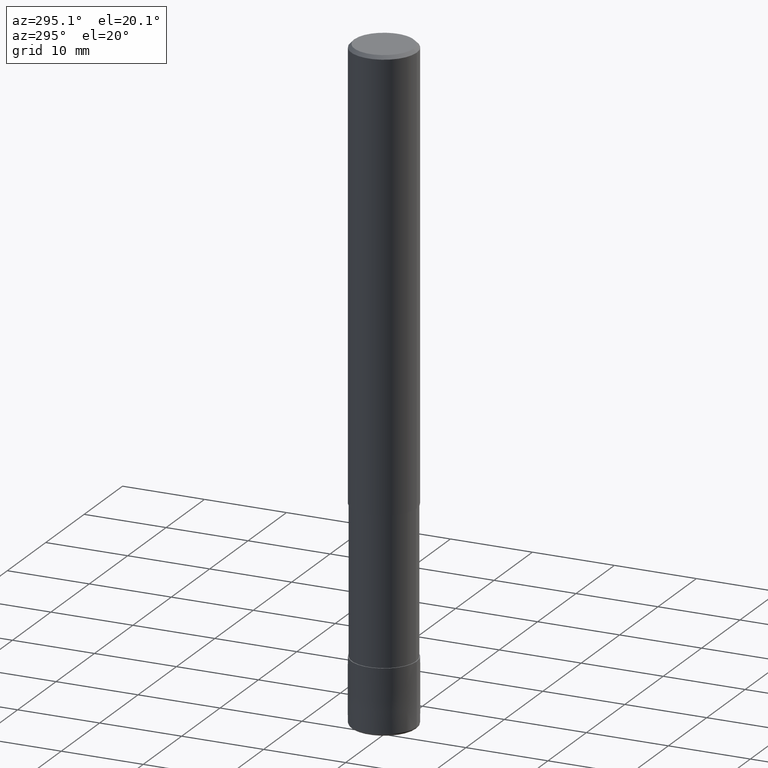
[diagram: clean part render]
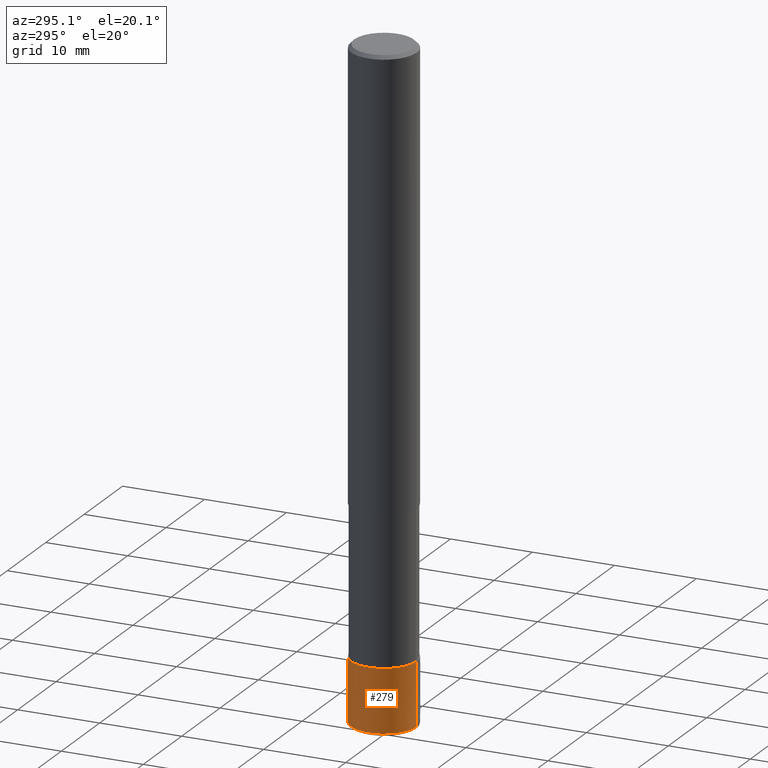
[diagram: same view with one face highlighted and labeled with its STEP entity id]
A machine part, auxiliary view. The second image highlights one B-rep face of the part: STEP entity #279.
In plain terms, the highlighted conical surface has half-angle 0.001 deg.
Its self-contained STEP definition (entity closure, byte-faithful):
#121=EDGE_CURVE('',#127,#221,#308,.T.);
#127=VERTEX_POINT('',#315);
#193=VERTEX_POINT('',#392);
#199=EDGE_CURVE('',#257,#221,#398,.T.);
#221=VERTEX_POINT('',#422);
#257=VERTEX_POINT('',#465);
#259=EDGE_CURVE('',#193,#127,#467,.T.);
#279=ADVANCED_FACE('',(#489),#490,.T.);
#283=EDGE_CURVE('',#257,#193,#494,.T.);
#308=LINE('',#513,#514);
#315=CARTESIAN_POINT('',(0.0,3.9999,-72.0));
#392=CARTESIAN_POINT('',(4.89830295465413E-016,-3.9999,-72.0));
#398=CIRCLE('',#630,4.0);
#422=CARTESIAN_POINT('',(0.0,4.0,-79.7));
#465=CARTESIAN_POINT('',(4.89842541528951E-016,-4.0,-79.7));
#467=CIRCLE('',#710,3.9999);
#489=FACE_OUTER_BOUND('',#738,.T.);
#490=CONICAL_SURFACE('',#739,3.99995,1.29870129863103E-005);
#494=LINE('',#744,#745);
#513=CARTESIAN_POINT('',(-4.89836418497182E-016,3.99995,-75.85));
#514=VECTOR('',#750,1.0);
#630=AXIS2_PLACEMENT_3D('',#868,#869,#870);
#710=AXIS2_PLACEMENT_3D('',#954,#955,#956);
#738=EDGE_LOOP('',(#987,#988,#989,#990));
#739=AXIS2_PLACEMENT_3D('',#991,#992,#993);
#744=CARTESIAN_POINT('',(4.89836418497182E-016,-3.99995,-75.85));
#745=VECTOR('',#994,1.0);
#750=DIRECTION('',(-1.59039786197622E-021,1.29870129859452E-005,-0.999999999915669));
#868=CARTESIAN_POINT('',(0.0,0.0,-79.7));
#869=DIRECTION('',(0.0,0.0,-1.0));
#870=DIRECTION('',(0.0,1.0,0.0));
#954=CARTESIAN_POINT('',(0.0,0.0,-72.0));
#955=DIRECTION('',(0.0,0.0,-1.0));
#956=DIRECTION('',(0.0,1.0,0.0));
#987=ORIENTED_EDGE('',*,*,#121,.T.);
#988=ORIENTED_EDGE('',*,*,#199,.F.);
#989=ORIENTED_EDGE('',*,*,#283,.T.);
#990=ORIENTED_EDGE('',*,*,#259,.T.);
#991=CARTESIAN_POINT('',(0.0,0.0,-75.85));
#992=DIRECTION('',(0.0,-0.0,-1.0));
#993=DIRECTION('',(0.0,1.0,0.0));
#994=DIRECTION('',(-1.59039786197622E-021,1.29870129859452E-005,0.999999999915669));